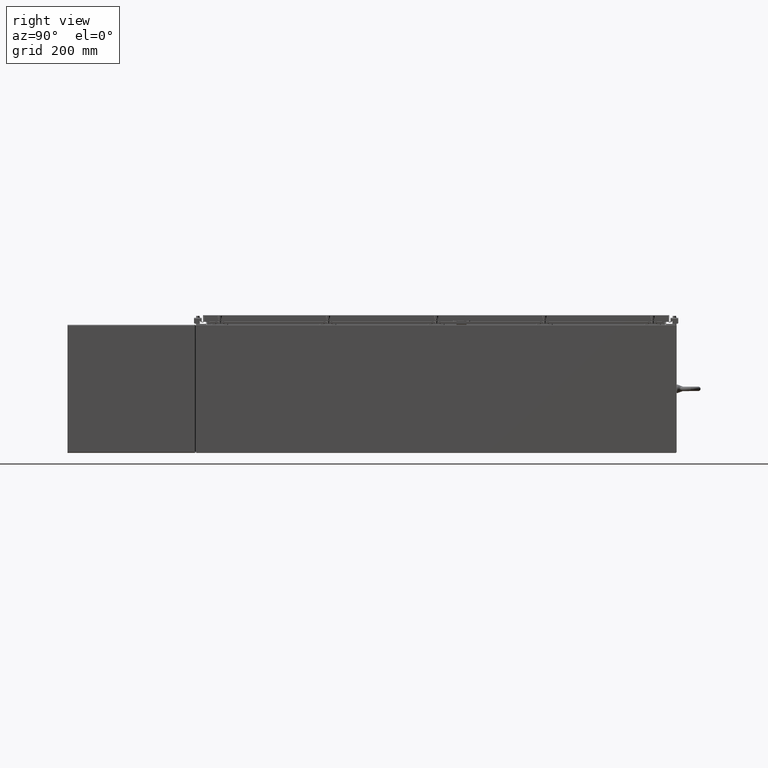
[diagram: clean part render]
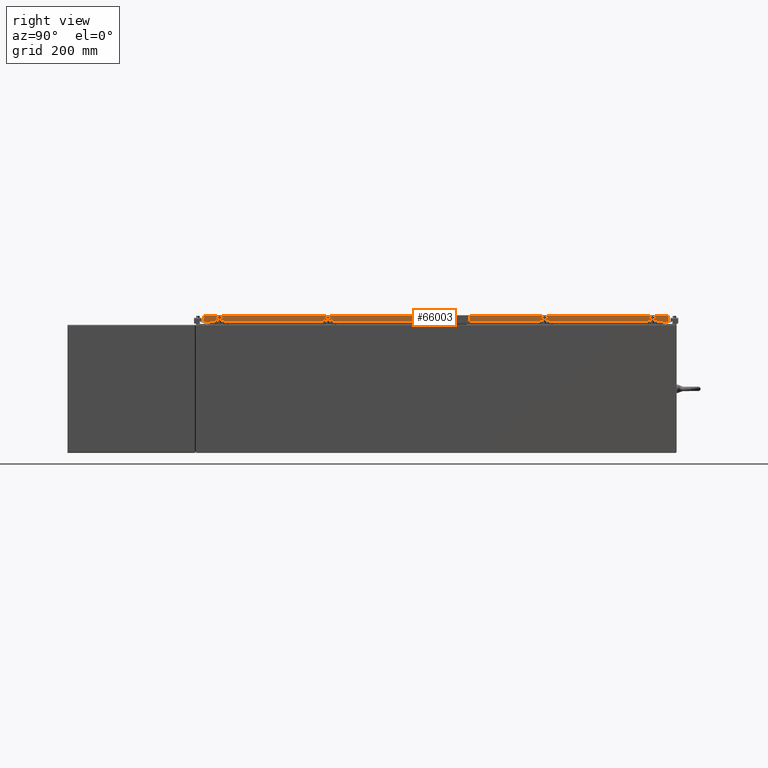
[diagram: same view with one face highlighted and labeled with its STEP entity id]
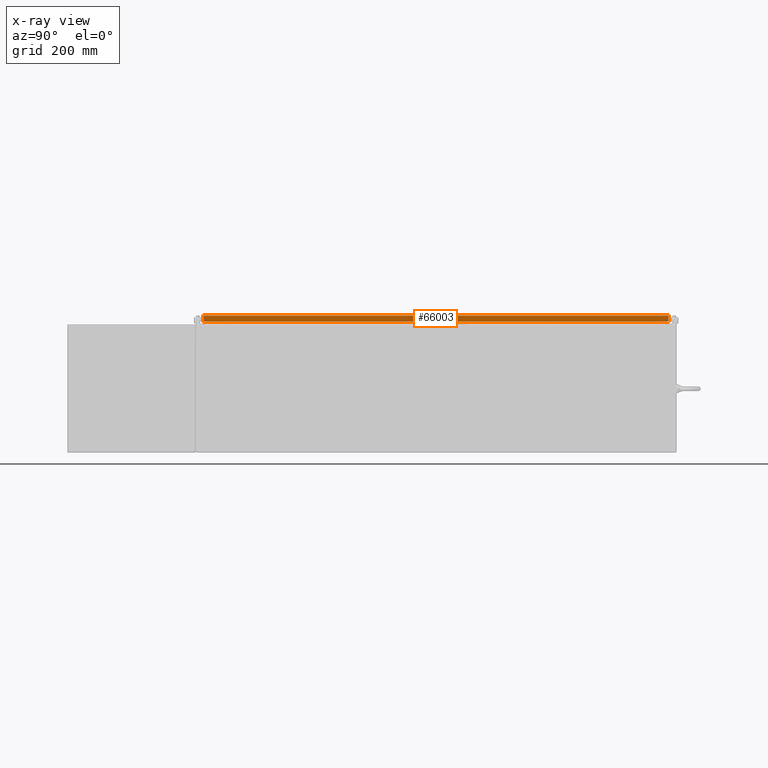
[diagram: x-ray of the same camera — body ghosted, the highlighted face saturated]
A machine part, right view. The second image highlights one B-rep face of the part: STEP entity #66003.
The next image is the same camera in x-ray: the body ghosted, the highlighted face saturated — about 0% of this face is hidden behind the body in this view.
In plain terms, the highlighted planar face has unit normal (1, 0, 0).
Its self-contained STEP definition (entity closure, byte-faithful):
#805 = EDGE_CURVE ( 'NONE', #12774, #6176, #51273, .T. ) ;
#1540 = LINE ( 'NONE', #32838, #57289 ) ;
#2216 = VERTEX_POINT ( 'NONE', #50986 ) ;
#4871 = ORIENTED_EDGE ( 'NONE', *, *, #11452, .T. ) ;
#6176 = VERTEX_POINT ( 'NONE', #47375 ) ;
#6394 = DIRECTION ( 'NONE',  ( 0.0000000000000000000, -1.000000000000000000, 0.0000000000000000000 ) ) ;
#6594 = CARTESIAN_POINT ( 'NONE',  ( 20.07800000000000300, -29.00515786437625500, -0.8499999999999996400 ) ) ;
#7154 = DIRECTION ( 'NONE',  ( 0.0000000000000000000, -1.000000000000000000, 0.0000000000000000000 ) ) ;
#7376 = VERTEX_POINT ( 'NONE', #12493 ) ;
#8077 = VECTOR ( 'NONE', #63851, 39.37007874015748100 ) ;
#9954 = DIRECTION ( 'NONE',  ( 0.0000000000000000000, -1.000000000000000000, 0.0000000000000000000 ) ) ;
#10016 = CARTESIAN_POINT ( 'NONE',  ( 20.07800000000000300, 29.00515786437628000, -0.8499999999999996400 ) ) ;
#11452 = EDGE_CURVE ( 'NONE', #48978, #7376, #63790, .T. ) ;
#12279 = CARTESIAN_POINT ( 'NONE',  ( 20.07800000000000300, -29.09399999999999100, -0.8499999999999996400 ) ) ;
#12287 = CARTESIAN_POINT ( 'NONE',  ( 20.07799999999998900, 28.25515786437627600, -0.8500000000000028600 ) ) ;
#12493 = CARTESIAN_POINT ( 'NONE',  ( 20.07799999999999600, 29.00515786437627600, -0.08769999999999549000 ) ) ;
#12774 = VERTEX_POINT ( 'NONE', #6594 ) ;
#16661 = VECTOR ( 'NONE', #9954, 39.37007874015748100 ) ;
#19885 = ORIENTED_EDGE ( 'NONE', *, *, #27778, .T. ) ;
#20414 = AXIS2_PLACEMENT_3D ( 'NONE', #27617, #22577, #59062 ) ;
#21266 = VECTOR ( 'NONE', #7154, 39.37007874015748100 ) ;
#22577 = DIRECTION ( 'NONE',  ( 1.000000000000000000, 0.0000000000000000000, 5.637761885544720300E-015 ) ) ;
#27617 = CARTESIAN_POINT ( 'NONE',  ( 20.07799999999999600, 0.0000000000000000000, 1.134557967939784600E-013 ) ) ;
#27778 = EDGE_CURVE ( 'NONE', #7376, #6176, #30558, .T. ) ;
#28063 = EDGE_LOOP ( 'NONE', ( #57751, #43624, #64666, #41500, #4871, #19885 ) ) ;
#30558 = LINE ( 'NONE', #56848, #16661 ) ;
#30800 = VECTOR ( 'NONE', #64104, 39.37007874015748100 ) ;
#32838 = CARTESIAN_POINT ( 'NONE',  ( 20.07800000000000300, -29.09399999999999100, -0.8499999999999996400 ) ) ;
#32870 = PLANE ( 'NONE',  #20414 ) ;
#33078 = DIRECTION ( 'NONE',  ( -5.637761885544720300E-015, -6.982962677686265900E-015, 1.000000000000000000 ) ) ;
#33769 = CARTESIAN_POINT ( 'NONE',  ( 20.07799999999999600, -29.00515786437625800, -0.07469999999999958600 ) ) ;
#37428 = VECTOR ( 'NONE', #33078, 39.37007874015748100 ) ;
#37432 = EDGE_CURVE ( 'NONE', #67372, #2216, #41583, .T. ) ;
#41500 = ORIENTED_EDGE ( 'NONE', *, *, #59354, .F. ) ;
#41583 = LINE ( 'NONE', #58570, #30800 ) ;
#43624 = ORIENTED_EDGE ( 'NONE', *, *, #61838, .F. ) ;
#46612 = CARTESIAN_POINT ( 'NONE',  ( 20.07799999999999600, 29.00515786437627600, 3.159977316213163200E-013 ) ) ;
#47375 = CARTESIAN_POINT ( 'NONE',  ( 20.07799999999999600, -29.00515786437625800, -0.08769999999999547600 ) ) ;
#48978 = VERTEX_POINT ( 'NONE', #10016 ) ;
#50986 = CARTESIAN_POINT ( 'NONE',  ( 20.07799999999998900, -28.25515786437624800, -0.8500000000000028600 ) ) ;
#51273 = LINE ( 'NONE', #33769, #37428 ) ;
#56848 = CARTESIAN_POINT ( 'NONE',  ( 20.07799999999999600, 0.0000000000000000000, -0.08769999999999547600 ) ) ;
#57289 = VECTOR ( 'NONE', #6394, 39.37007874015748100 ) ;
#57751 = ORIENTED_EDGE ( 'NONE', *, *, #805, .F. ) ;
#58570 = CARTESIAN_POINT ( 'NONE',  ( 20.07799999999998900, 28.25515786437628300, -0.8500000000000028600 ) ) ;
#59062 = DIRECTION ( 'NONE',  ( 5.637761885544720300E-015, 0.0000000000000000000, -1.000000000000000000 ) ) ;
#59354 = EDGE_CURVE ( 'NONE', #48978, #67372, #1540, .T. ) ;
#61838 = EDGE_CURVE ( 'NONE', #2216, #12774, #61997, .T. ) ;
#61997 = LINE ( 'NONE', #12279, #21266 ) ;
#63790 = LINE ( 'NONE', #46612, #8077 ) ;
#63851 = DIRECTION ( 'NONE',  ( -5.637761885544720300E-015, -6.982962677686265900E-015, 1.000000000000000000 ) ) ;
#63995 = FACE_OUTER_BOUND ( 'NONE', #28063, .T. ) ;
#64104 = DIRECTION ( 'NONE',  ( 0.0000000000000000000, -1.000000000000000000, 0.0000000000000000000 ) ) ;
#64666 = ORIENTED_EDGE ( 'NONE', *, *, #37432, .F. ) ;
#66003 = ADVANCED_FACE ( 'NONE', ( #63995 ), #32870, .T. ) ;
#67372 = VERTEX_POINT ( 'NONE', #12287 ) ;